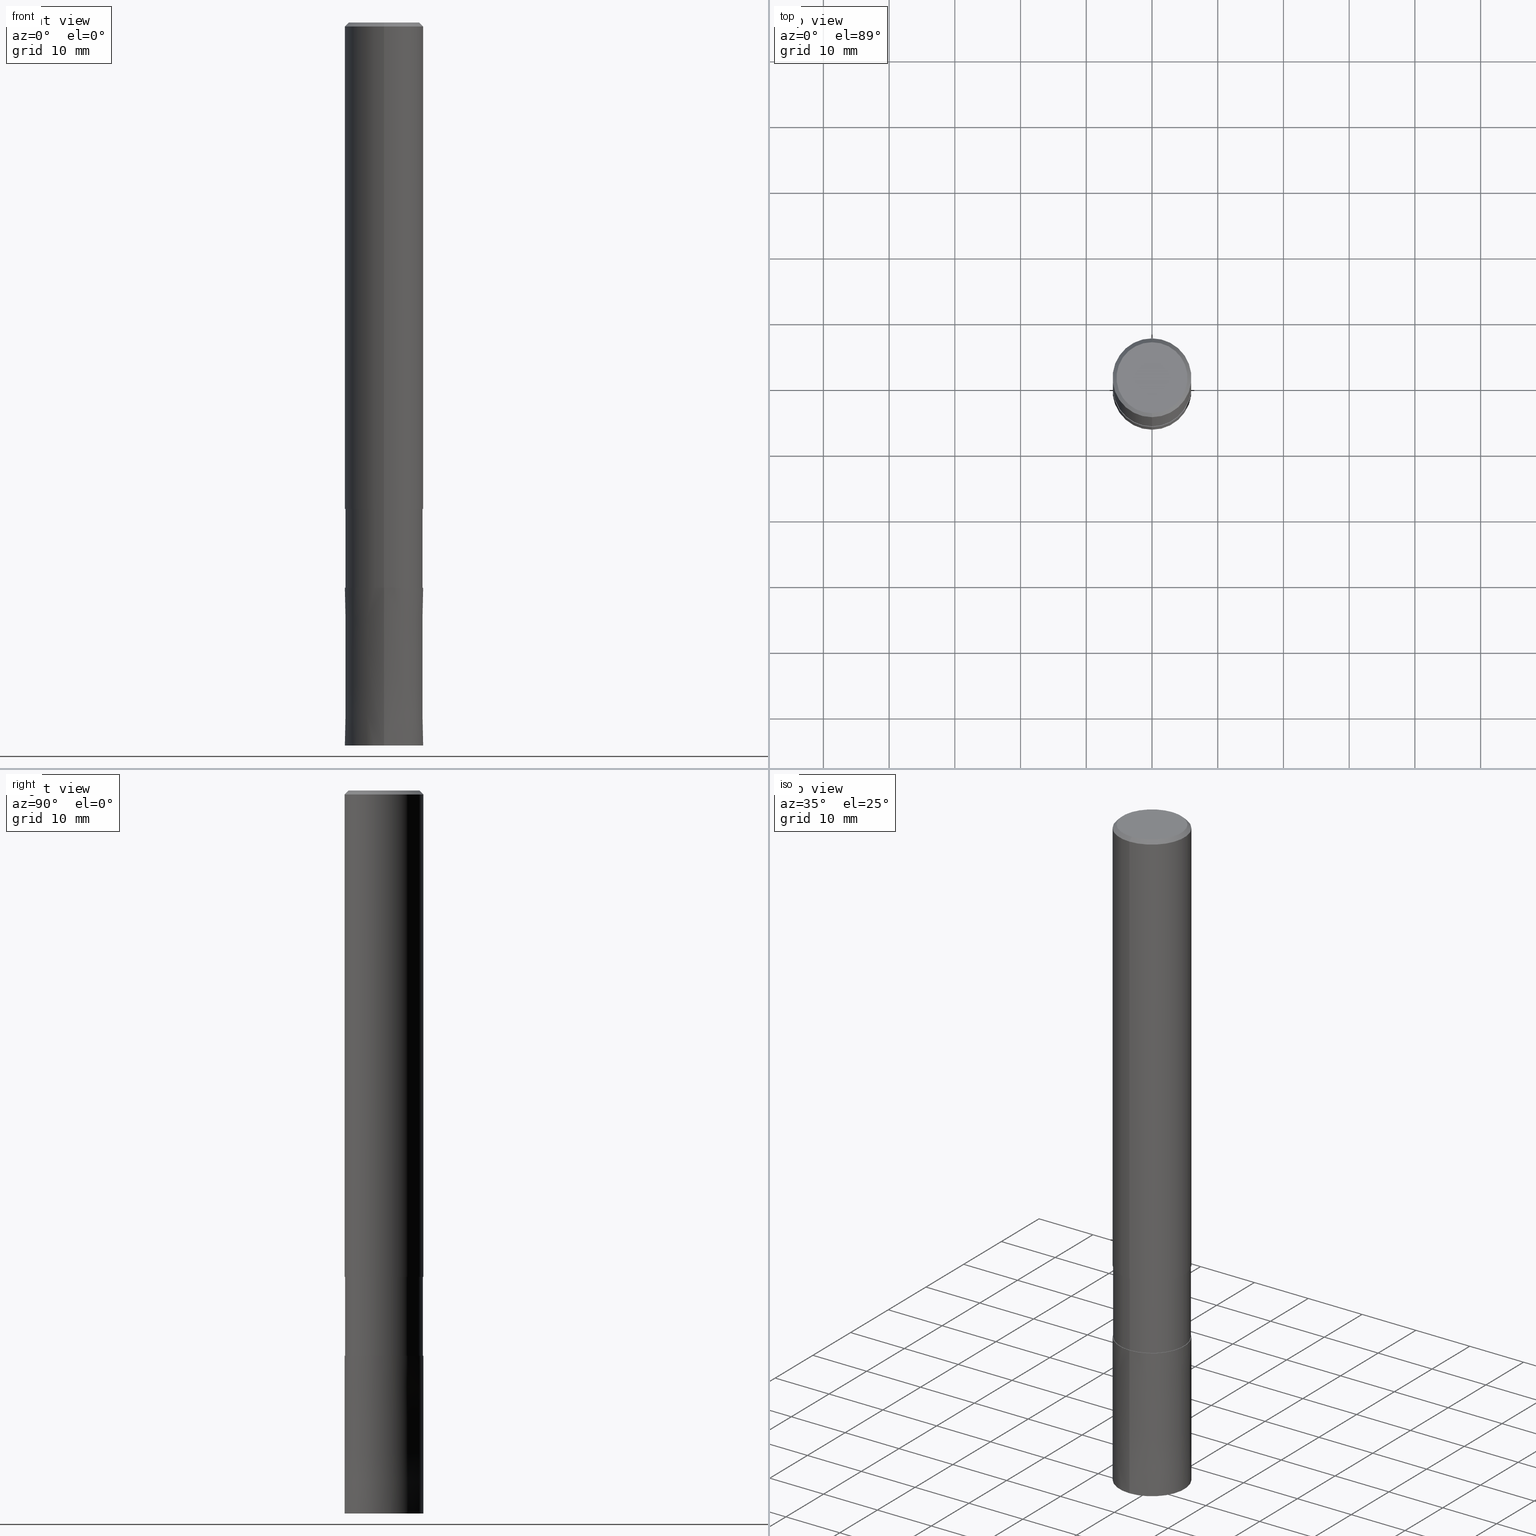
[diagram: canonical four-view strip — front | top / right | iso, engineering-drawing reading convention]
A machine part, canonical four-view strip (front | top / right | iso — engineering-drawing reading convention). The complete STEP part file that produces these views, byte-faithful:
ISO-10303-21;
HEADER;
FILE_DESCRIPTION(('no description'),'unknown implementation level');
FILE_NAME('DLC-AZS3120-360-Huellk.stp','  ',('CIMSOURCE GmbH'),('CADClick - KiM GmbH - www.kimweb.de'),'unknown preprocess','ACIS','unknown authorization');
FILE_SCHEMA(('automotive_design'));
ENDSEC;
DATA;
#1=MECHANICAL_DESIGN_GEOMETRIC_PRESENTATION_REPRESENTATION(' ',(#14,#15,#16,#17,#18,#19,#20,#21,#22,#23,#24,#25,#26,#27,#28,#29,#30,#31,#32,#33,#34,#35,#36,#37,#38,#39,#40,#41,#42,#43,#44,#45,#46,#47,#48,#49,#50,#51,#52,#53,#54,#55,#56,#57,#58,#59,#60,#61,#62,#63,#64),#10);
#2=PRODUCT_DEFINITION_CONTEXT('',#65,'design');
#3=APPLICATION_PROTOCOL_DEFINITION('INTERNATIONAL STANDARD','automotive_design',1994,#65);
#4=PRODUCT_CATEGORY_RELATIONSHIP('NONE','NONE',#66,#67);
#5=SHAPE_DEFINITION_REPRESENTATION(#68,#69);
#6=PRODUCT_DEFINITION_CONTEXT('',#70,'design');
#7=APPLICATION_PROTOCOL_DEFINITION('INTERNATIONAL STANDARD','automotive_design',1994,#70);
#8=PRODUCT_CATEGORY_RELATIONSHIP('NONE','NONE',#71,#72);
#9=SHAPE_DEFINITION_REPRESENTATION(#73,#74);
#10= (GEOMETRIC_REPRESENTATION_CONTEXT(3)GLOBAL_UNCERTAINTY_ASSIGNED_CONTEXT((#77))GLOBAL_UNIT_ASSIGNED_CONTEXT((#79,#80,#81))REPRESENTATION_CONTEXT('NONE','WORKSPACE'));
#14=STYLED_ITEM('',(#83),#84);
#15=STYLED_ITEM('',(#85),#86);
#16=STYLED_ITEM('',(#87),#88);
#17=STYLED_ITEM('',(#89),#90);
#18=STYLED_ITEM('',(#91),#92);
#19=STYLED_ITEM('',(#93),#94);
#20=STYLED_ITEM('',(#95),#96);
#21=STYLED_ITEM('',(#97),#98);
#22=STYLED_ITEM('',(#99),#100);
#23=STYLED_ITEM('',(#101),#102);
#24=STYLED_ITEM('',(#103),#104);
#25=STYLED_ITEM('',(#105),#106);
#26=STYLED_ITEM('',(#107),#108);
#27=STYLED_ITEM('',(#109),#110);
#28=STYLED_ITEM('',(#111),#112);
#29=STYLED_ITEM('',(#113),#114);
#30=STYLED_ITEM('',(#115),#116);
#31=STYLED_ITEM('',(#117),#118);
#32=STYLED_ITEM('',(#119),#120);
#33=STYLED_ITEM('',(#121),#122);
#34=STYLED_ITEM('',(#123),#124);
#35=STYLED_ITEM('',(#125),#126);
#36=STYLED_ITEM('',(#127),#128);
#37=STYLED_ITEM('',(#129),#130);
#38=STYLED_ITEM('',(#131),#132);
#39=STYLED_ITEM('',(#133),#134);
#40=STYLED_ITEM('',(#135),#136);
#41=STYLED_ITEM('',(#137),#138);
#42=STYLED_ITEM('',(#139),#140);
#43=STYLED_ITEM('',(#141),#142);
#44=STYLED_ITEM('',(#143),#144);
#45=STYLED_ITEM('',(#145),#146);
#46=STYLED_ITEM('',(#147),#148);
#47=STYLED_ITEM('',(#149),#150);
#48=STYLED_ITEM('',(#151),#152);
#49=STYLED_ITEM('',(#153),#154);
#50=STYLED_ITEM('',(#155),#156);
#51=STYLED_ITEM('',(#157),#158);
#52=STYLED_ITEM('',(#159),#160);
#53=STYLED_ITEM('',(#161),#162);
#54=STYLED_ITEM('',(#163),#164);
#55=STYLED_ITEM('',(#165),#166);
#56=STYLED_ITEM('',(#167),#168);
#57=STYLED_ITEM('',(#169),#170);
#58=STYLED_ITEM('',(#171),#172);
#59=STYLED_ITEM('',(#173),#174);
#60=STYLED_ITEM('',(#175),#176);
#61=STYLED_ITEM('',(#177),#178);
#62=STYLED_ITEM('',(#179),#180);
#63=STYLED_ITEM('',(#181),#182);
#64=STYLED_ITEM('',(#183),#184);
#65=APPLICATION_CONTEXT(' ');
#66=PRODUCT_CATEGORY('part','NONE');
#67=PRODUCT_RELATED_PRODUCT_CATEGORY('detail',' ',(#185));
#68=PRODUCT_DEFINITION_SHAPE('NONE','NONE',#186);
#69=ADVANCED_BREP_SHAPE_REPRESENTATION('1',(#144,#187),#10);
#70=APPLICATION_CONTEXT(' ');
#71=PRODUCT_CATEGORY('part','NONE');
#72=PRODUCT_RELATED_PRODUCT_CATEGORY('detail',' ',(#188));
#73=PRODUCT_DEFINITION_SHAPE('NONE','NONE',#189);
#74=ADVANCED_BREP_SHAPE_REPRESENTATION('2',(#168,#190),#10);
#77=UNCERTAINTY_MEASURE_WITH_UNIT(LENGTH_MEASURE(1.0E-006),#79,'','');
#79= (CONVERSION_BASED_UNIT('MILLIMETRE',#193)LENGTH_UNIT()NAMED_UNIT(#196));
#80= (NAMED_UNIT(#198)PLANE_ANGLE_UNIT()SI_UNIT($,.RADIAN.));
#81= (NAMED_UNIT(#198)SOLID_ANGLE_UNIT()SI_UNIT($,.STERADIAN.));
#83=PRESENTATION_STYLE_ASSIGNMENT((#204));
#84=ADVANCED_FACE('',(#205),#206,.T.);
#85=PRESENTATION_STYLE_ASSIGNMENT((#207));
#86=ADVANCED_FACE('',(#208),#209,.T.);
#87=PRESENTATION_STYLE_ASSIGNMENT((#210));
#88=ADVANCED_FACE('',(#211),#212,.T.);
#89=PRESENTATION_STYLE_ASSIGNMENT((#213));
#90=EDGE_CURVE('',#98,#94,#214,.T.);
#91=PRESENTATION_STYLE_ASSIGNMENT((#215));
#92=VERTEX_POINT('',#216);
#93=PRESENTATION_STYLE_ASSIGNMENT((#217));
#94=VERTEX_POINT('',#218);
#95=PRESENTATION_STYLE_ASSIGNMENT((#219));
#96=ADVANCED_FACE('',(#220),#221,.T.);
#97=PRESENTATION_STYLE_ASSIGNMENT((#222));
#98=VERTEX_POINT('',#223);
#99=PRESENTATION_STYLE_ASSIGNMENT((#224));
#100=EDGE_CURVE('',#184,#92,#225,.T.);
#101=PRESENTATION_STYLE_ASSIGNMENT((#226));
#102=EDGE_CURVE('',#142,#174,#227,.T.);
#103=PRESENTATION_STYLE_ASSIGNMENT((#228));
#104=VERTEX_POINT('',#229);
#105=PRESENTATION_STYLE_ASSIGNMENT((#230));
#106=EDGE_CURVE('',#142,#92,#231,.T.);
#107=PRESENTATION_STYLE_ASSIGNMENT((#232));
#108=EDGE_CURVE('',#98,#104,#233,.T.);
#109=PRESENTATION_STYLE_ASSIGNMENT((#234));
#110=ADVANCED_FACE('',(#235),#236,.T.);
#111=PRESENTATION_STYLE_ASSIGNMENT((#237));
#112=VERTEX_POINT('',#238);
#113=PRESENTATION_STYLE_ASSIGNMENT((#239));
#114=EDGE_CURVE('',#94,#172,#240,.T.);
#115=PRESENTATION_STYLE_ASSIGNMENT((#241));
#116=ADVANCED_FACE('',(#242),#243,.T.);
#117=PRESENTATION_STYLE_ASSIGNMENT((#244));
#118=VERTEX_POINT('',#245);
#119=PRESENTATION_STYLE_ASSIGNMENT((#246));
#120=VERTEX_POINT('',#247);
#121=PRESENTATION_STYLE_ASSIGNMENT((#248));
#122=VERTEX_POINT('',#249);
#123=PRESENTATION_STYLE_ASSIGNMENT((#250));
#124=EDGE_CURVE('',#120,#118,#251,.T.);
#125=PRESENTATION_STYLE_ASSIGNMENT((#252));
#126=EDGE_CURVE('',#122,#112,#253,.T.);
#127=PRESENTATION_STYLE_ASSIGNMENT((#254));
#128=ADVANCED_FACE('',(#255),#256,.T.);
#129=PRESENTATION_STYLE_ASSIGNMENT((#257));
#130=EDGE_CURVE('',#92,#134,#258,.T.);
#131=PRESENTATION_STYLE_ASSIGNMENT((#259));
#132=EDGE_CURVE('',#156,#142,#260,.T.);
#133=PRESENTATION_STYLE_ASSIGNMENT((#261));
#134=VERTEX_POINT('',#262);
#135=PRESENTATION_STYLE_ASSIGNMENT((#263));
#136=ADVANCED_FACE('',(#264),#265,.T.);
#137=PRESENTATION_STYLE_ASSIGNMENT((#266));
#138=EDGE_CURVE('',#104,#98,#267,.T.);
#139=PRESENTATION_STYLE_ASSIGNMENT((#268));
#140=ADVANCED_FACE('',(#269),#270,.T.);
#141=PRESENTATION_STYLE_ASSIGNMENT((#271));
#142=VERTEX_POINT('',#272);
#143=PRESENTATION_STYLE_ASSIGNMENT((#273));
#144=MANIFOLD_SOLID_BREP('1',#274);
#145=PRESENTATION_STYLE_ASSIGNMENT((#275));
#146=EDGE_CURVE('',#92,#142,#276,.T.);
#147=PRESENTATION_STYLE_ASSIGNMENT((#277));
#148=ADVANCED_FACE('',(#278),#279,.T.);
#149=PRESENTATION_STYLE_ASSIGNMENT((#280));
#150=ADVANCED_FACE('',(#281),#282,.T.);
#151=PRESENTATION_STYLE_ASSIGNMENT((#283));
#152=ADVANCED_FACE('',(#284,#285),#286,.T.);
#153=PRESENTATION_STYLE_ASSIGNMENT((#287));
#154=EDGE_CURVE('',#122,#120,#288,.T.);
#155=PRESENTATION_STYLE_ASSIGNMENT((#289));
#156=VERTEX_POINT('',#290);
#157=PRESENTATION_STYLE_ASSIGNMENT((#291));
#158=EDGE_CURVE('',#118,#112,#292,.T.);
#159=PRESENTATION_STYLE_ASSIGNMENT((#293));
#160=EDGE_CURVE('',#112,#122,#294,.T.);
#161=PRESENTATION_STYLE_ASSIGNMENT((#295));
#162=EDGE_CURVE('',#172,#94,#296,.T.);
#163=PRESENTATION_STYLE_ASSIGNMENT((#297));
#164=EDGE_CURVE('',#134,#156,#298,.T.);
#165=PRESENTATION_STYLE_ASSIGNMENT((#299));
#166=EDGE_CURVE('',#184,#174,#300,.T.);
#167=PRESENTATION_STYLE_ASSIGNMENT((#301));
#168=MANIFOLD_SOLID_BREP('2',#302);
#169=PRESENTATION_STYLE_ASSIGNMENT((#303));
#170=EDGE_CURVE('',#156,#134,#304,.T.);
#171=PRESENTATION_STYLE_ASSIGNMENT((#305));
#172=VERTEX_POINT('',#306);
#173=PRESENTATION_STYLE_ASSIGNMENT((#307));
#174=VERTEX_POINT('',#308);
#175=PRESENTATION_STYLE_ASSIGNMENT((#309));
#176=EDGE_CURVE('',#118,#120,#310,.T.);
#177=PRESENTATION_STYLE_ASSIGNMENT((#311));
#178=EDGE_CURVE('',#172,#104,#312,.T.);
#179=PRESENTATION_STYLE_ASSIGNMENT((#313));
#180=ADVANCED_FACE('',(#314),#315,.T.);
#181=PRESENTATION_STYLE_ASSIGNMENT((#316));
#182=EDGE_CURVE('',#174,#184,#317,.T.);
#183=PRESENTATION_STYLE_ASSIGNMENT((#318));
#184=VERTEX_POINT('',#319);
#185=PRODUCT('1','1','PART-1-DESC',(#320));
#186=PRODUCT_DEFINITION('NONE','NONE',#321,#2);
#187=AXIS2_PLACEMENT_3D('',#322,#323,#324);
#188=PRODUCT('2','2','PART-2-DESC',(#325));
#189=PRODUCT_DEFINITION('NONE','NONE',#326,#6);
#190=AXIS2_PLACEMENT_3D('',#327,#328,#329);
#193=LENGTH_MEASURE_WITH_UNIT(LENGTH_MEASURE(1.0),#330);
#196=DIMENSIONAL_EXPONENTS(1.0,0.0,0.0,0.0,0.0,0.0,0.0);
#198=DIMENSIONAL_EXPONENTS(0.0,0.0,0.0,0.0,0.0,0.0,0.0);
#204=SURFACE_STYLE_USAGE(.BOTH.,#331);
#205=FACE_OUTER_BOUND('',#332,.T.);
#206=PLANE('',#333);
#207=SURFACE_STYLE_USAGE(.BOTH.,#334);
#208=FACE_OUTER_BOUND('',#335,.T.);
#209=CONICAL_SURFACE('',#336,5.99995,4.16666666663284E-006);
#210=SURFACE_STYLE_USAGE(.BOTH.,#337);
#211=FACE_OUTER_BOUND('',#338,.T.);
#212=CONICAL_SURFACE('',#339,5.7,0.785398163397453);
#213=CURVE_STYLE('',#340,POSITIVE_LENGTH_MEASURE(1.0E-006),#341);
#214=LINE('',#342,#343);
#215=POINT_STYLE(' ',#344,POSITIVE_LENGTH_MEASURE(1.0E-006),#345);
#216=CARTESIAN_POINT('',(0.0,6.0,-0.599999999999994));
#217=POINT_STYLE(' ',#346,POSITIVE_LENGTH_MEASURE(1.0E-006),#347);
#218=CARTESIAN_POINT('',(7.23736232077256E-016,-5.90995,-74.0));
#219=SURFACE_STYLE_USAGE(.BOTH.,#348);
#220=FACE_OUTER_BOUND('',#349,.T.);
#221=CONICAL_SURFACE('',#350,5.7,0.785398163397453);
#222=POINT_STYLE(' ',#351,POSITIVE_LENGTH_MEASURE(1.0E-006),#352);
#223=CARTESIAN_POINT('',(7.23736232077256E-016,-5.90995,-86.0));
#224=CURVE_STYLE('',#353,POSITIVE_LENGTH_MEASURE(1.0E-006),#354);
#225=LINE('',#355,#356);
#226=CURVE_STYLE('',#357,POSITIVE_LENGTH_MEASURE(1.0E-006),#358);
#227=LINE('',#359,#360);
#228=POINT_STYLE(' ',#361,POSITIVE_LENGTH_MEASURE(1.0E-006),#362);
#229=CARTESIAN_POINT('',(0.0,5.90995,-86.0));
#230=CURVE_STYLE('',#363,POSITIVE_LENGTH_MEASURE(1.0E-006),#364);
#231=CIRCLE('',#365,6.0);
#232=CURVE_STYLE('',#366,POSITIVE_LENGTH_MEASURE(1.0E-006),#367);
#233=CIRCLE('',#368,5.90995);
#234=SURFACE_STYLE_USAGE(.BOTH.,#369);
#235=FACE_OUTER_BOUND('',#370,.T.);
#236=PLANE('',#371);
#237=POINT_STYLE(' ',#372,POSITIVE_LENGTH_MEASURE(1.0E-006),#373);
#238=CARTESIAN_POINT('',(0.0,6.0,-110.0));
#239=CURVE_STYLE('',#374,POSITIVE_LENGTH_MEASURE(1.0E-006),#375);
#240=CIRCLE('',#376,5.90995);
#241=SURFACE_STYLE_USAGE(.BOTH.,#377);
#242=FACE_OUTER_BOUND('',#378,.T.);
#243=CYLINDRICAL_SURFACE('',#379,6.0);
#244=POINT_STYLE(' ',#380,POSITIVE_LENGTH_MEASURE(1.0E-006),#381);
#245=CARTESIAN_POINT('',(0.0,5.9999,-86.0));
#246=POINT_STYLE(' ',#382,POSITIVE_LENGTH_MEASURE(1.0E-006),#383);
#247=CARTESIAN_POINT('',(7.34751566229888E-016,-5.9999,-86.0));
#248=POINT_STYLE(' ',#384,POSITIVE_LENGTH_MEASURE(1.0E-006),#385);
#249=CARTESIAN_POINT('',(7.34763812293426E-016,-6.0,-110.0));
#250=CURVE_STYLE('',#386,POSITIVE_LENGTH_MEASURE(1.0E-006),#387);
#251=CIRCLE('',#388,5.9999);
#252=CURVE_STYLE('',#389,POSITIVE_LENGTH_MEASURE(1.0E-006),#390);
#253=CIRCLE('',#391,6.0);
#254=SURFACE_STYLE_USAGE(.BOTH.,#392);
#255=FACE_OUTER_BOUND('',#393,.T.);
#256=PLANE('',#394);
#257=CURVE_STYLE('',#395,POSITIVE_LENGTH_MEASURE(1.0E-006),#396);
#258=LINE('',#397,#398);
#259=CURVE_STYLE('',#399,POSITIVE_LENGTH_MEASURE(1.0E-006),#400);
#260=LINE('',#401,#402);
#261=POINT_STYLE(' ',#403,POSITIVE_LENGTH_MEASURE(1.0E-006),#404);
#262=CARTESIAN_POINT('',(0.0,6.0,-74.0));
#263=SURFACE_STYLE_USAGE(.BOTH.,#405);
#264=FACE_OUTER_BOUND('',#406,.T.);
#265=CYLINDRICAL_SURFACE('',#407,6.0);
#266=CURVE_STYLE('',#408,POSITIVE_LENGTH_MEASURE(1.0E-006),#409);
#267=CIRCLE('',#410,5.90995);
#268=SURFACE_STYLE_USAGE(.BOTH.,#411);
#269=FACE_OUTER_BOUND('',#412,.T.);
#270=CYLINDRICAL_SURFACE('',#413,5.90995);
#271=POINT_STYLE(' ',#414,POSITIVE_LENGTH_MEASURE(1.0E-006),#415);
#272=CARTESIAN_POINT('',(7.34763812293426E-016,-6.0,-0.599999999999994));
#273=SURFACE_STYLE_USAGE(.BOTH.,#416);
#274=CLOSED_SHELL('',(#148,#136,#88,#152,#128,#96,#116,#140,#84));
#275=CURVE_STYLE('',#417,POSITIVE_LENGTH_MEASURE(1.0E-006),#418);
#276=CIRCLE('',#419,6.0);
#277=SURFACE_STYLE_USAGE(.BOTH.,#420);
#278=FACE_OUTER_BOUND('',#421,.T.);
#279=CYLINDRICAL_SURFACE('',#422,5.90995);
#280=SURFACE_STYLE_USAGE(.BOTH.,#423);
#281=FACE_OUTER_BOUND('',#424,.T.);
#282=PLANE('',#425);
#283=SURFACE_STYLE_USAGE(.BOTH.,#426);
#284=FACE_OUTER_BOUND('',#427,.T.);
#285=FACE_BOUND('',#428,.T.);
#286=PLANE('',#429);
#287=CURVE_STYLE('',#430,POSITIVE_LENGTH_MEASURE(1.0E-006),#431);
#288=LINE('',#432,#433);
#289=POINT_STYLE(' ',#434,POSITIVE_LENGTH_MEASURE(1.0E-006),#435);
#290=CARTESIAN_POINT('',(7.34763812293426E-016,-6.0,-74.0));
#291=CURVE_STYLE('',#436,POSITIVE_LENGTH_MEASURE(1.0E-006),#437);
#292=LINE('',#438,#439);
#293=CURVE_STYLE('',#440,POSITIVE_LENGTH_MEASURE(1.0E-006),#441);
#294=CIRCLE('',#442,6.0);
#295=CURVE_STYLE('',#443,POSITIVE_LENGTH_MEASURE(1.0E-006),#444);
#296=CIRCLE('',#445,5.90995);
#297=CURVE_STYLE('',#446,POSITIVE_LENGTH_MEASURE(1.0E-006),#447);
#298=CIRCLE('',#448,6.0);
#299=CURVE_STYLE('',#449,POSITIVE_LENGTH_MEASURE(1.0E-006),#450);
#300=CIRCLE('',#451,5.4);
#301=SURFACE_STYLE_USAGE(.BOTH.,#452);
#302=CLOSED_SHELL('',(#180,#150,#86,#110));
#303=CURVE_STYLE('',#453,POSITIVE_LENGTH_MEASURE(1.0E-006),#454);
#304=CIRCLE('',#455,6.0);
#305=POINT_STYLE(' ',#456,POSITIVE_LENGTH_MEASURE(1.0E-006),#457);
#306=CARTESIAN_POINT('',(0.0,5.90995,-74.0));
#307=POINT_STYLE(' ',#458,POSITIVE_LENGTH_MEASURE(1.0E-006),#459);
#308=CARTESIAN_POINT('',(6.61287431064084E-016,-5.4,0.0));
#309=CURVE_STYLE('',#460,POSITIVE_LENGTH_MEASURE(1.0E-006),#461);
#310=CIRCLE('',#462,5.9999);
#311=CURVE_STYLE('',#463,POSITIVE_LENGTH_MEASURE(1.0E-006),#464);
#312=LINE('',#465,#466);
#313=SURFACE_STYLE_USAGE(.BOTH.,#467);
#314=FACE_OUTER_BOUND('',#468,.T.);
#315=CONICAL_SURFACE('',#469,5.99995,4.16666666663284E-006);
#316=CURVE_STYLE('',#470,POSITIVE_LENGTH_MEASURE(1.0E-006),#471);
#317=CIRCLE('',#472,5.4);
#318=POINT_STYLE(' ',#473,POSITIVE_LENGTH_MEASURE(1.0E-006),#474);
#319=CARTESIAN_POINT('',(0.0,5.4,0.0));
#320=PRODUCT_CONTEXT('',#65,'mechanical');
#321=PRODUCT_DEFINITION_FORMATION_WITH_SPECIFIED_SOURCE(' ','NONE',#185,.NOT_KNOWN.);
#322=CARTESIAN_POINT('',(0.0,0.0,0.0));
#323=DIRECTION('',(0.0,0.0,1.0));
#324=DIRECTION('',(1.0,0.0,0.0));
#325=PRODUCT_CONTEXT('',#70,'mechanical');
#326=PRODUCT_DEFINITION_FORMATION_WITH_SPECIFIED_SOURCE(' ','NONE',#188,.NOT_KNOWN.);
#327=CARTESIAN_POINT('',(0.0,0.0,0.0));
#328=DIRECTION('',(0.0,0.0,1.0));
#329=DIRECTION('',(1.0,0.0,0.0));
#330= (NAMED_UNIT(#196)LENGTH_UNIT()SI_UNIT(.MILLI.,.METRE.));
#331=SURFACE_SIDE_STYLE('',(#476));
#332=EDGE_LOOP('',(#477,#478));
#333=AXIS2_PLACEMENT_3D('',#479,#480,#481);
#334=SURFACE_SIDE_STYLE('',(#482));
#335=EDGE_LOOP('',(#483,#484,#485,#486));
#336=AXIS2_PLACEMENT_3D('',#487,#488,#489);
#337=SURFACE_SIDE_STYLE('',(#490));
#338=EDGE_LOOP('',(#491,#492,#493,#494));
#339=AXIS2_PLACEMENT_3D('',#495,#496,#497);
#340=DRAUGHTING_PRE_DEFINED_CURVE_FONT('continuous');
#341=COLOUR_RGB('',0.498039215803146,0.498039215803146,0.498039215803146);
#342=CARTESIAN_POINT('',(7.23736232077256E-016,-5.90995,-80.0));
#343=VECTOR('',#498,1.0);
#344=PRE_DEFINED_MARKER('');
#345=COLOUR_RGB('',0.498039215803146,0.498039215803146,0.498039215803146);
#346=PRE_DEFINED_MARKER('');
#347=COLOUR_RGB('',0.498039215803146,0.498039215803146,0.498039215803146);
#348=SURFACE_SIDE_STYLE('',(#499));
#349=EDGE_LOOP('',(#500,#501,#502,#503));
#350=AXIS2_PLACEMENT_3D('',#504,#505,#506);
#351=PRE_DEFINED_MARKER('');
#352=COLOUR_RGB('',0.498039215803146,0.498039215803146,0.498039215803146);
#353=DRAUGHTING_PRE_DEFINED_CURVE_FONT('continuous');
#354=COLOUR_RGB('',0.498039215803146,0.498039215803146,0.498039215803146);
#355=CARTESIAN_POINT('',(-6.98025621678755E-016,5.7,-0.299999999999997));
#356=VECTOR('',#507,1.0);
#357=DRAUGHTING_PRE_DEFINED_CURVE_FONT('continuous');
#358=COLOUR_RGB('',0.498039215803146,0.498039215803146,0.498039215803146);
#359=CARTESIAN_POINT('',(6.98025621678755E-016,-5.7,-0.299999999999997));
#360=VECTOR('',#508,1.0);
#361=PRE_DEFINED_MARKER('');
#362=COLOUR_RGB('',0.498039215803146,0.498039215803146,0.498039215803146);
#363=DRAUGHTING_PRE_DEFINED_CURVE_FONT('continuous');
#364=COLOUR_RGB('',0.498039215803146,0.498039215803146,0.498039215803146);
#365=AXIS2_PLACEMENT_3D('',#509,#510,#511);
#366=DRAUGHTING_PRE_DEFINED_CURVE_FONT('continuous');
#367=COLOUR_RGB('',0.498039215803146,0.498039215803146,0.498039215803146);
#368=AXIS2_PLACEMENT_3D('',#512,#513,#514);
#369=SURFACE_SIDE_STYLE('',(#515));
#370=EDGE_LOOP('',(#516,#517));
#371=AXIS2_PLACEMENT_3D('',#518,#519,#520);
#372=PRE_DEFINED_MARKER('');
#373=COLOUR_RGB('',0.800000011920929,0.800000011920929,0.800000011920929);
#374=DRAUGHTING_PRE_DEFINED_CURVE_FONT('continuous');
#375=COLOUR_RGB('',0.498039215803146,0.498039215803146,0.498039215803146);
#376=AXIS2_PLACEMENT_3D('',#521,#522,#523);
#377=SURFACE_SIDE_STYLE('',(#524));
#378=EDGE_LOOP('',(#525,#526,#527,#528));
#379=AXIS2_PLACEMENT_3D('',#529,#530,#531);
#380=PRE_DEFINED_MARKER('');
#381=COLOUR_RGB('',0.800000011920929,0.800000011920929,0.800000011920929);
#382=PRE_DEFINED_MARKER('');
#383=COLOUR_RGB('',0.800000011920929,0.800000011920929,0.800000011920929);
#384=PRE_DEFINED_MARKER('');
#385=COLOUR_RGB('',0.800000011920929,0.800000011920929,0.800000011920929);
#386=DRAUGHTING_PRE_DEFINED_CURVE_FONT('continuous');
#387=COLOUR_RGB('',0.800000011920929,0.800000011920929,0.800000011920929);
#388=AXIS2_PLACEMENT_3D('',#532,#533,#534);
#389=DRAUGHTING_PRE_DEFINED_CURVE_FONT('continuous');
#390=COLOUR_RGB('',0.800000011920929,0.800000011920929,0.800000011920929);
#391=AXIS2_PLACEMENT_3D('',#535,#536,#537);
#392=SURFACE_SIDE_STYLE('',(#538));
#393=EDGE_LOOP('',(#539,#540));
#394=AXIS2_PLACEMENT_3D('',#541,#542,#543);
#395=DRAUGHTING_PRE_DEFINED_CURVE_FONT('continuous');
#396=COLOUR_RGB('',0.498039215803146,0.498039215803146,0.498039215803146);
#397=CARTESIAN_POINT('',(-7.34763812293426E-016,6.0,-37.3));
#398=VECTOR('',#544,1.0);
#399=DRAUGHTING_PRE_DEFINED_CURVE_FONT('continuous');
#400=COLOUR_RGB('',0.498039215803146,0.498039215803146,0.498039215803146);
#401=CARTESIAN_POINT('',(7.34763812293426E-016,-6.0,-37.3));
#402=VECTOR('',#545,1.0);
#403=PRE_DEFINED_MARKER('');
#404=COLOUR_RGB('',0.498039215803146,0.498039215803146,0.498039215803146);
#405=SURFACE_SIDE_STYLE('',(#546));
#406=EDGE_LOOP('',(#547,#548,#549,#550));
#407=AXIS2_PLACEMENT_3D('',#551,#552,#553);
#408=DRAUGHTING_PRE_DEFINED_CURVE_FONT('continuous');
#409=COLOUR_RGB('',0.498039215803146,0.498039215803146,0.498039215803146);
#410=AXIS2_PLACEMENT_3D('',#554,#555,#556);
#411=SURFACE_SIDE_STYLE('',(#557));
#412=EDGE_LOOP('',(#558,#559,#560,#561));
#413=AXIS2_PLACEMENT_3D('',#562,#563,#564);
#414=PRE_DEFINED_MARKER('');
#415=COLOUR_RGB('',0.498039215803146,0.498039215803146,0.498039215803146);
#416=SURFACE_SIDE_STYLE('',(#565));
#417=DRAUGHTING_PRE_DEFINED_CURVE_FONT('continuous');
#418=COLOUR_RGB('',0.498039215803146,0.498039215803146,0.498039215803146);
#419=AXIS2_PLACEMENT_3D('',#566,#567,#568);
#420=SURFACE_SIDE_STYLE('',(#569));
#421=EDGE_LOOP('',(#570,#571,#572,#573));
#422=AXIS2_PLACEMENT_3D('',#574,#575,#576);
#423=SURFACE_SIDE_STYLE('',(#577));
#424=EDGE_LOOP('',(#578,#579));
#425=AXIS2_PLACEMENT_3D('',#580,#581,#582);
#426=SURFACE_SIDE_STYLE('',(#583));
#427=EDGE_LOOP('',(#584,#585));
#428=EDGE_LOOP('',(#586,#587));
#429=AXIS2_PLACEMENT_3D('',#588,#589,#590);
#430=DRAUGHTING_PRE_DEFINED_CURVE_FONT('continuous');
#431=COLOUR_RGB('',0.800000011920929,0.800000011920929,0.800000011920929);
#432=CARTESIAN_POINT('',(7.34757689261657E-016,-5.99995,-98.0));
#433=VECTOR('',#591,1.0);
#434=PRE_DEFINED_MARKER('');
#435=COLOUR_RGB('',0.498039215803146,0.498039215803146,0.498039215803146);
#436=DRAUGHTING_PRE_DEFINED_CURVE_FONT('continuous');
#437=COLOUR_RGB('',0.800000011920929,0.800000011920929,0.800000011920929);
#438=CARTESIAN_POINT('',(-7.34757689261657E-016,5.99995,-98.0));
#439=VECTOR('',#592,1.0);
#440=DRAUGHTING_PRE_DEFINED_CURVE_FONT('continuous');
#441=COLOUR_RGB('',0.800000011920929,0.800000011920929,0.800000011920929);
#442=AXIS2_PLACEMENT_3D('',#593,#594,#595);
#443=DRAUGHTING_PRE_DEFINED_CURVE_FONT('continuous');
#444=COLOUR_RGB('',0.498039215803146,0.498039215803146,0.498039215803146);
#445=AXIS2_PLACEMENT_3D('',#596,#597,#598);
#446=DRAUGHTING_PRE_DEFINED_CURVE_FONT('continuous');
#447=COLOUR_RGB('',0.498039215803146,0.498039215803146,0.498039215803146);
#448=AXIS2_PLACEMENT_3D('',#599,#600,#601);
#449=DRAUGHTING_PRE_DEFINED_CURVE_FONT('continuous');
#450=COLOUR_RGB('',0.498039215803146,0.498039215803146,0.498039215803146);
#451=AXIS2_PLACEMENT_3D('',#602,#603,#604);
#452=SURFACE_SIDE_STYLE('',(#605));
#453=DRAUGHTING_PRE_DEFINED_CURVE_FONT('continuous');
#454=COLOUR_RGB('',0.498039215803146,0.498039215803146,0.498039215803146);
#455=AXIS2_PLACEMENT_3D('',#606,#607,#608);
#456=PRE_DEFINED_MARKER('');
#457=COLOUR_RGB('',0.498039215803146,0.498039215803146,0.498039215803146);
#458=PRE_DEFINED_MARKER('');
#459=COLOUR_RGB('',0.498039215803146,0.498039215803146,0.498039215803146);
#460=DRAUGHTING_PRE_DEFINED_CURVE_FONT('continuous');
#461=COLOUR_RGB('',0.800000011920929,0.800000011920929,0.800000011920929);
#462=AXIS2_PLACEMENT_3D('',#609,#610,#611);
#463=DRAUGHTING_PRE_DEFINED_CURVE_FONT('continuous');
#464=COLOUR_RGB('',0.498039215803146,0.498039215803146,0.498039215803146);
#465=CARTESIAN_POINT('',(-7.23736232077256E-016,5.90995,-80.0));
#466=VECTOR('',#612,1.0);
#467=SURFACE_SIDE_STYLE('',(#613));
#468=EDGE_LOOP('',(#614,#615,#616,#617));
#469=AXIS2_PLACEMENT_3D('',#618,#619,#620);
#470=DRAUGHTING_PRE_DEFINED_CURVE_FONT('continuous');
#471=COLOUR_RGB('',0.498039215803146,0.498039215803146,0.498039215803146);
#472=AXIS2_PLACEMENT_3D('',#621,#622,#623);
#473=PRE_DEFINED_MARKER('');
#474=COLOUR_RGB('',0.498039215803146,0.498039215803146,0.498039215803146);
#476=SURFACE_STYLE_FILL_AREA(#624);
#477=ORIENTED_EDGE('',*,*,#138,.T.);
#478=ORIENTED_EDGE('',*,*,#108,.T.);
#479=CARTESIAN_POINT('',(0.0,2.954975,-86.0));
#480=DIRECTION('',(0.0,0.0,-1.0));
#481=DIRECTION('',(0.0,1.0,0.0));
#482=SURFACE_STYLE_FILL_AREA(#625);
#483=ORIENTED_EDGE('',*,*,#158,.T.);
#484=ORIENTED_EDGE('',*,*,#126,.F.);
#485=ORIENTED_EDGE('',*,*,#154,.T.);
#486=ORIENTED_EDGE('',*,*,#124,.T.);
#487=CARTESIAN_POINT('',(0.0,0.0,-98.0));
#488=DIRECTION('',(0.0,-0.0,-1.0));
#489=DIRECTION('',(0.0,1.0,0.0));
#490=SURFACE_STYLE_FILL_AREA(#626);
#491=ORIENTED_EDGE('',*,*,#100,.F.);
#492=ORIENTED_EDGE('',*,*,#166,.T.);
#493=ORIENTED_EDGE('',*,*,#102,.F.);
#494=ORIENTED_EDGE('',*,*,#146,.F.);
#495=CARTESIAN_POINT('',(0.0,0.0,-0.299999999999997));
#496=DIRECTION('',(0.0,-0.0,-1.0));
#497=DIRECTION('',(0.0,1.0,0.0));
#498=DIRECTION('',(-0.0,-0.0,1.0));
#499=SURFACE_STYLE_FILL_AREA(#627);
#500=ORIENTED_EDGE('',*,*,#100,.T.);
#501=ORIENTED_EDGE('',*,*,#106,.F.);
#502=ORIENTED_EDGE('',*,*,#102,.T.);
#503=ORIENTED_EDGE('',*,*,#182,.T.);
#504=CARTESIAN_POINT('',(0.0,0.0,-0.299999999999997));
#505=DIRECTION('',(0.0,-0.0,-1.0));
#506=DIRECTION('',(0.0,1.0,0.0));
#507=DIRECTION('',(-8.65927457071939E-017,0.707106781186551,-0.707106781186544));
#508=DIRECTION('',(-8.65927457071939E-017,0.707106781186551,0.707106781186544));
#509=CARTESIAN_POINT('',(0.0,0.0,-0.599999999999994));
#510=DIRECTION('',(0.0,0.0,-1.0));
#511=DIRECTION('',(0.0,1.0,0.0));
#512=CARTESIAN_POINT('',(0.0,0.0,-86.0));
#513=DIRECTION('',(0.0,0.0,-1.0));
#514=DIRECTION('',(0.0,1.0,0.0));
#515=SURFACE_STYLE_FILL_AREA(#628);
#516=ORIENTED_EDGE('',*,*,#160,.T.);
#517=ORIENTED_EDGE('',*,*,#126,.T.);
#518=CARTESIAN_POINT('',(0.0,2.9975,-110.0));
#519=DIRECTION('',(0.0,0.0,-1.0));
#520=DIRECTION('',(0.0,1.0,0.0));
#521=CARTESIAN_POINT('',(0.0,0.0,-74.0));
#522=DIRECTION('',(0.0,0.0,-1.0));
#523=DIRECTION('',(0.0,1.0,0.0));
#524=SURFACE_STYLE_FILL_AREA(#629);
#525=ORIENTED_EDGE('',*,*,#130,.T.);
#526=ORIENTED_EDGE('',*,*,#170,.F.);
#527=ORIENTED_EDGE('',*,*,#132,.T.);
#528=ORIENTED_EDGE('',*,*,#106,.T.);
#529=CARTESIAN_POINT('',(0.0,0.0,-37.3));
#530=DIRECTION('',(-0.0,-0.0,1.0));
#531=DIRECTION('',(0.0,1.0,0.0));
#532=CARTESIAN_POINT('',(0.0,0.0,-86.0));
#533=DIRECTION('',(0.0,0.0,-1.0));
#534=DIRECTION('',(0.0,1.0,0.0));
#535=CARTESIAN_POINT('',(0.0,0.0,-110.0));
#536=DIRECTION('',(0.0,0.0,-1.0));
#537=DIRECTION('',(0.0,1.0,0.0));
#538=SURFACE_STYLE_FILL_AREA(#630);
#539=ORIENTED_EDGE('',*,*,#166,.F.);
#540=ORIENTED_EDGE('',*,*,#182,.F.);
#541=CARTESIAN_POINT('',(0.0,2.7,0.0));
#542=DIRECTION('',(-0.0,0.0,1.0));
#543=DIRECTION('',(0.0,-1.0,0.0));
#544=DIRECTION('',(0.0,0.0,-1.0));
#545=DIRECTION('',(-0.0,-0.0,1.0));
#546=SURFACE_STYLE_FILL_AREA(#631);
#547=ORIENTED_EDGE('',*,*,#130,.F.);
#548=ORIENTED_EDGE('',*,*,#146,.T.);
#549=ORIENTED_EDGE('',*,*,#132,.F.);
#550=ORIENTED_EDGE('',*,*,#164,.F.);
#551=CARTESIAN_POINT('',(0.0,0.0,-37.3));
#552=DIRECTION('',(-0.0,-0.0,1.0));
#553=DIRECTION('',(0.0,1.0,0.0));
#554=CARTESIAN_POINT('',(0.0,0.0,-86.0));
#555=DIRECTION('',(0.0,0.0,-1.0));
#556=DIRECTION('',(0.0,1.0,0.0));
#557=SURFACE_STYLE_FILL_AREA(#632);
#558=ORIENTED_EDGE('',*,*,#178,.T.);
#559=ORIENTED_EDGE('',*,*,#108,.F.);
#560=ORIENTED_EDGE('',*,*,#90,.T.);
#561=ORIENTED_EDGE('',*,*,#114,.T.);
#562=CARTESIAN_POINT('',(0.0,0.0,-80.0));
#563=DIRECTION('',(-0.0,-0.0,1.0));
#564=DIRECTION('',(0.0,1.0,0.0));
#565=SURFACE_STYLE_FILL_AREA(#633);
#566=CARTESIAN_POINT('',(0.0,0.0,-0.599999999999994));
#567=DIRECTION('',(0.0,0.0,-1.0));
#568=DIRECTION('',(0.0,1.0,0.0));
#569=SURFACE_STYLE_FILL_AREA(#634);
#570=ORIENTED_EDGE('',*,*,#178,.F.);
#571=ORIENTED_EDGE('',*,*,#162,.T.);
#572=ORIENTED_EDGE('',*,*,#90,.F.);
#573=ORIENTED_EDGE('',*,*,#138,.F.);
#574=CARTESIAN_POINT('',(0.0,0.0,-80.0));
#575=DIRECTION('',(-0.0,-0.0,1.0));
#576=DIRECTION('',(0.0,1.0,0.0));
#577=SURFACE_STYLE_FILL_AREA(#635);
#578=ORIENTED_EDGE('',*,*,#176,.F.);
#579=ORIENTED_EDGE('',*,*,#124,.F.);
#580=CARTESIAN_POINT('',(0.0,2.99995,-86.0));
#581=DIRECTION('',(-0.0,0.0,1.0));
#582=DIRECTION('',(0.0,-1.0,0.0));
#583=SURFACE_STYLE_FILL_AREA(#636);
#584=ORIENTED_EDGE('',*,*,#164,.T.);
#585=ORIENTED_EDGE('',*,*,#170,.T.);
#586=ORIENTED_EDGE('',*,*,#162,.F.);
#587=ORIENTED_EDGE('',*,*,#114,.F.);
#588=CARTESIAN_POINT('',(0.0,3.0,-74.0));
#589=DIRECTION('',(0.0,0.0,-1.0));
#590=DIRECTION('',(0.0,1.0,0.0));
#591=DIRECTION('',(-5.10252647420372E-022,4.16666666662079E-006,0.99999999999132));
#592=DIRECTION('',(-5.10252647420372E-022,4.16666666662079E-006,-0.99999999999132));
#593=CARTESIAN_POINT('',(0.0,0.0,-110.0));
#594=DIRECTION('',(0.0,0.0,-1.0));
#595=DIRECTION('',(0.0,1.0,0.0));
#596=CARTESIAN_POINT('',(0.0,0.0,-74.0));
#597=DIRECTION('',(0.0,0.0,-1.0));
#598=DIRECTION('',(0.0,1.0,0.0));
#599=CARTESIAN_POINT('',(0.0,0.0,-74.0));
#600=DIRECTION('',(0.0,0.0,-1.0));
#601=DIRECTION('',(0.0,1.0,0.0));
#602=CARTESIAN_POINT('',(0.0,0.0,0.0));
#603=DIRECTION('',(0.0,0.0,-1.0));
#604=DIRECTION('',(0.0,1.0,0.0));
#605=SURFACE_STYLE_FILL_AREA(#637);
#606=CARTESIAN_POINT('',(0.0,0.0,-74.0));
#607=DIRECTION('',(0.0,0.0,-1.0));
#608=DIRECTION('',(0.0,1.0,0.0));
#609=CARTESIAN_POINT('',(0.0,0.0,-86.0));
#610=DIRECTION('',(0.0,0.0,-1.0));
#611=DIRECTION('',(0.0,1.0,0.0));
#612=DIRECTION('',(0.0,0.0,-1.0));
#613=SURFACE_STYLE_FILL_AREA(#638);
#614=ORIENTED_EDGE('',*,*,#158,.F.);
#615=ORIENTED_EDGE('',*,*,#176,.T.);
#616=ORIENTED_EDGE('',*,*,#154,.F.);
#617=ORIENTED_EDGE('',*,*,#160,.F.);
#618=CARTESIAN_POINT('',(0.0,0.0,-98.0));
#619=DIRECTION('',(0.0,-0.0,-1.0));
#620=DIRECTION('',(0.0,1.0,0.0));
#621=CARTESIAN_POINT('',(0.0,0.0,0.0));
#622=DIRECTION('',(0.0,0.0,-1.0));
#623=DIRECTION('',(0.0,1.0,0.0));
#624=FILL_AREA_STYLE('',(#639));
#625=FILL_AREA_STYLE('',(#640));
#626=FILL_AREA_STYLE('',(#641));
#627=FILL_AREA_STYLE('',(#642));
#628=FILL_AREA_STYLE('',(#643));
#629=FILL_AREA_STYLE('',(#644));
#630=FILL_AREA_STYLE('',(#645));
#631=FILL_AREA_STYLE('',(#646));
#632=FILL_AREA_STYLE('',(#647));
#633=FILL_AREA_STYLE('',(#648));
#634=FILL_AREA_STYLE('',(#649));
#635=FILL_AREA_STYLE('',(#650));
#636=FILL_AREA_STYLE('',(#651));
#637=FILL_AREA_STYLE('',(#652));
#638=FILL_AREA_STYLE('',(#653));
#639=FILL_AREA_STYLE_COLOUR('',#654);
#640=FILL_AREA_STYLE_COLOUR('',#655);
#641=FILL_AREA_STYLE_COLOUR('',#656);
#642=FILL_AREA_STYLE_COLOUR('',#657);
#643=FILL_AREA_STYLE_COLOUR('',#658);
#644=FILL_AREA_STYLE_COLOUR('',#659);
#645=FILL_AREA_STYLE_COLOUR('',#660);
#646=FILL_AREA_STYLE_COLOUR('',#661);
#647=FILL_AREA_STYLE_COLOUR('',#662);
#648=FILL_AREA_STYLE_COLOUR('',#663);
#649=FILL_AREA_STYLE_COLOUR('',#664);
#650=FILL_AREA_STYLE_COLOUR('',#665);
#651=FILL_AREA_STYLE_COLOUR('',#666);
#652=FILL_AREA_STYLE_COLOUR('',#667);
#653=FILL_AREA_STYLE_COLOUR('',#668);
#654=COLOUR_RGB('',0.498039215803146,0.498039215803146,0.498039215803146);
#655=COLOUR_RGB('',0.800000011920929,0.800000011920929,0.800000011920929);
#656=COLOUR_RGB('',0.498039215803146,0.498039215803146,0.498039215803146);
#657=COLOUR_RGB('',0.498039215803146,0.498039215803146,0.498039215803146);
#658=COLOUR_RGB('',0.800000011920929,0.800000011920929,0.800000011920929);
#659=COLOUR_RGB('',0.498039215803146,0.498039215803146,0.498039215803146);
#660=COLOUR_RGB('',0.498039215803146,0.498039215803146,0.498039215803146);
#661=COLOUR_RGB('',0.498039215803146,0.498039215803146,0.498039215803146);
#662=COLOUR_RGB('',0.498039215803146,0.498039215803146,0.498039215803146);
#663=COLOUR_RGB('',0.498039215803146,0.498039215803146,0.498039215803146);
#664=COLOUR_RGB('',0.498039215803146,0.498039215803146,0.498039215803146);
#665=COLOUR_RGB('',0.800000011920929,0.800000011920929,0.800000011920929);
#666=COLOUR_RGB('',0.498039215803146,0.498039215803146,0.498039215803146);
#667=COLOUR_RGB('',0.800000011920929,0.800000011920929,0.800000011920929);
#668=COLOUR_RGB('',0.800000011920929,0.800000011920929,0.800000011920929);
#669=AXIS2_PLACEMENT_3D('PCS',#670,#671,#672);
#670=CARTESIAN_POINT('',(0.0,0.0,0.0));
#671=DIRECTION('',(0.0,0.0,1.0));
#672=DIRECTION('',(1.0,0.0,0.0));
#673=AXIS2_PLACEMENT_3D('CIP',#674,#675,#676);
#674=CARTESIAN_POINT('',(0.0,0.0,-110.0));
#675=DIRECTION('',(0.0,0.0,1.0));
#676=DIRECTION('',(1.0,0.0,0.0));
#677=AXIS2_PLACEMENT_3D('CRP',#678,#679,#680);
#678=CARTESIAN_POINT('',(-6.0,0.0,-110.0));
#679=DIRECTION('',(0.0,0.0,1.0));
#680=DIRECTION('',(1.0,0.0,0.0));
#681=AXIS2_PLACEMENT_3D('MCS',#682,#683,#684);
#682=CARTESIAN_POINT('',(0.0,0.0,-74.0));
#683=DIRECTION('',(0.0,0.0,1.0));
#684=DIRECTION('',(1.0,0.0,0.0));
#685=CONSTRUCTIVE_GEOMETRY_REPRESENTATION_RELATIONSHIP('coordinate systems',$,#69,#686);
#686=CONSTRUCTIVE_GEOMETRY_REPRESENTATION('coordinate systems',(#669,#673,#677,#681),#10);
ENDSEC;
END-ISO-10303-21;
